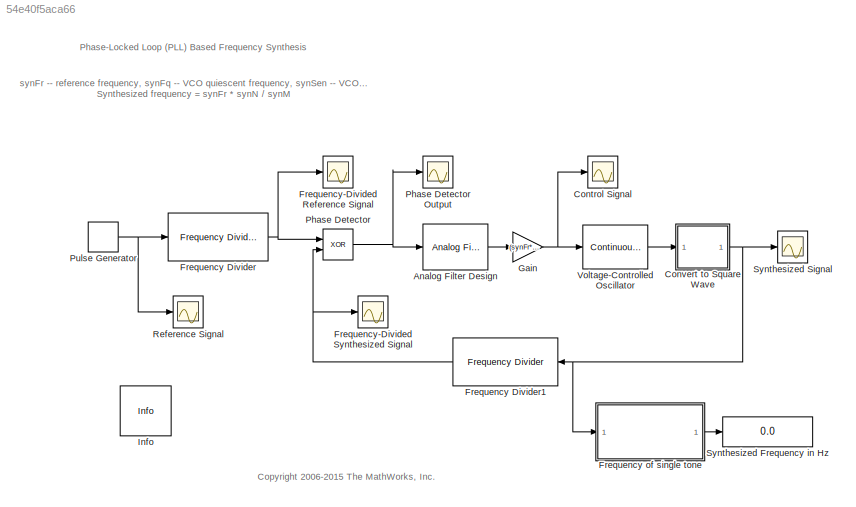
MODEL slx_54e40f5aca66
KIND model
CONFIG AbsTol = auto
CONFIG EnableMultiTasking = on
CONFIG FixedStep = 1/(3*synFr*synN/synM)
CONFIG MaxStep = .5/(synFr*synN/synM)
CONFIG MinStep = auto
CONFIG PreLoadFcn = synM = 3;    % frequency division ratio\nsynN = 10;   % frequency division ratio\nsynFr = 30e6;   % reference frequency\nsynFq = synFr;       % quiescent frequency\nsynSen = 40e6;   % VCO sensitivity
CONFIG RelTol = 1e-3
CONFIG SampleTimeConstraint = Unconstrained
CONFIG Solver = ode45
CONFIG SolverName = ode45
CONFIG StartTime = 0.0
CONFIG StopTime = 500*synM/synFr
BLOCK [Reference] Analog Filter Design  REF=dsparch4/Analog
Filter Design
  Ports = [1, 1]
  SourceBlock = dsparch4/Analog\nFilter Design
  SourceProductBaseCode = DS
  SourceProductName = DSP System Toolbox
  SourceType = Analog Filter Design
BLOCK [Scope] Control Signal
  Floating = off
  NumInputPorts = 1
  Ports = [1]
  ScopeSpecificationString = Simulink.scopes.TimeScopeBlockCfg('CurrentConfiguration', extmgr.ConfigurationSet(extmgr.Configuration('Core','General UI',true,'FigureColor',[1 1 1]),extmgr.Configuration('Core','Source UI',true),extmgr.Configuration('Sources','WiredSimulink',true,'DataLoggingVariableName','ScopeData1','DataLoggingSaveFormat','StructureWithTime','DataLoggingDecimation','1','DataLoggingDecimateData',true),extmgr.C...<+1836ch>
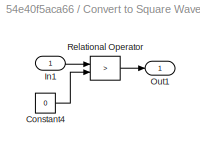
BLOCK [SubSystem] Convert to Square Wave
  Ports = [1, 1]
  RequestExecContextInheritance = off
BLOCK [Constant] Convert to Square Wave/Constant4
  Value = 0
BLOCK [Inport] Convert to Square Wave/In1
  IconDisplay = Port number
BLOCK [Outport] Convert to Square Wave/Out1
  IconDisplay = Port number
BLOCK [RelationalOperator] Convert to Square Wave/Relational Operator
  Operator = >
  Ports = [2, 1]
BLOCK [Reference] Frequency Divider  REF=commblksprivate/Frequency Divider
  Ports = [1, 1]
  SourceBlock = commblksprivate/Frequency Divider
  SourceProductBaseCode = CM
  SourceProductName = Communications System Toolbox
  SourceType = Frequency Divider
BLOCK [Reference] Frequency Divider1  REF=commblksprivate/Frequency Divider
  Ports = [1, 1]
  SourceBlock = commblksprivate/Frequency Divider
  SourceProductBaseCode = CM
  SourceProductName = Communications System Toolbox
  SourceType = Frequency Divider
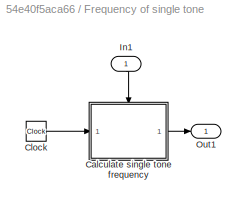
BLOCK [SubSystem] Frequency of single tone
  Ports = [1, 1]
  RequestExecContextInheritance = off
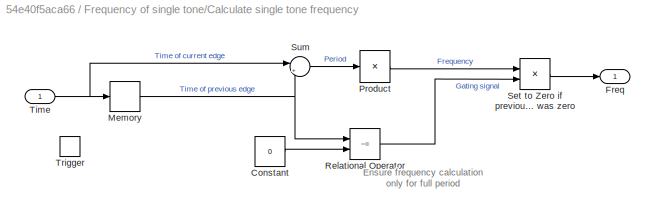
BLOCK [SubSystem] Frequency of single tone/Calculate single tone frequency
  Ports = [1, 1, 0, 1]
  RequestExecContextInheritance = off
  TreatAsAtomicUnit = on
BLOCK [Constant] Frequency of single tone/Calculate single tone frequency/Constant
  Value = 0
BLOCK [Outport] Frequency of single tone/Calculate single tone frequency/Freq
  IconDisplay = Port number
  InitialOutput = 0
BLOCK [Memory] Frequency of single tone/Calculate single tone frequency/Memory
  InheritSampleTime = on
BLOCK [Product] Frequency of single tone/Calculate single tone frequency/Product
  Inputs = /
  Ports = [1, 1]
  RndMeth = Floor
BLOCK [RelationalOperator] Frequency of single tone/Calculate single tone frequency/Relational Operator
  Operator = ~=
  Ports = [2, 1]
BLOCK [Product] Frequency of single tone/Calculate single tone frequency/Set to Zero if previous time was zero
  Ports = [2, 1]
  RndMeth = Floor
BLOCK [Sum] Frequency of single tone/Calculate single tone frequency/Sum
  IconShape = round
  Inputs = |+-
  Ports = [2, 1]
BLOCK [Inport] Frequency of single tone/Calculate single tone frequency/Time
  IconDisplay = Port number
BLOCK [TriggerPort] Frequency of single tone/Calculate single tone frequency/Trigger
  Ports = []
  VariantControl = (inherit)
  ZeroCross = off
BLOCK [Clock] Frequency of single tone/Clock
  Decimation = 1
BLOCK [Inport] Frequency of single tone/In1
  IconDisplay = Port number
BLOCK [Outport] Frequency of single tone/Out1
  IconDisplay = Port number
BLOCK [Scope] Frequency-Divided Reference Signal
  Floating = off
  NumInputPorts = 1
  Ports = [1]
  ScopeSpecificationString = Simulink.scopes.TimeScopeBlockCfg('CurrentConfiguration', extmgr.ConfigurationSet(extmgr.Configuration('Core','General UI',true,'FigureColor',[1 1 1]),extmgr.Configuration('Core','Source UI',true),extmgr.Configuration('Sources','WiredSimulink',true,'DataLoggingVariableName','ScopeData5','DataLoggingSaveFormat','StructureWithTime','DataLoggingLimitDataPoints',true,'DataLoggingDecimation','1','DataL...<+1912ch>
BLOCK [Scope] Frequency-Divided Synthesized Signal
  Floating = off
  NumInputPorts = 1
  Ports = [1]
  ScopeSpecificationString = Simulink.scopes.TimeScopeBlockCfg('CurrentConfiguration', extmgr.ConfigurationSet(extmgr.Configuration('Core','General UI',true,'FigureColor',[1 1 1]),extmgr.Configuration('Core','Source UI',true),extmgr.Configuration('Sources','WiredSimulink',true,'DataLoggingVariableName','ScopeData4','DataLoggingSaveFormat','StructureWithTime','DataLoggingLimitDataPoints',true,'DataLoggingDecimation','1','DataL...<+1912ch>
BLOCK [Gain] Gain
  Gain = (synFr*synN/synM - synFq) * 2 / synSen
BLOCK [Reference] Info  REF=commblksprivate/Info
  Ports = []
  SourceBlock = commblksprivate/Info
  SourceProductBaseCode = CM
  SourceProductName = Communications System Toolbox
  SourceType = Info
BLOCK [Logic] Phase Detector
  Operator = XOR
  Ports = [2, 1]
BLOCK [Scope] Phase Detector Output
  Floating = off
  NumInputPorts = 1
  Ports = [1]
  ScopeSpecificationString = Simulink.scopes.TimeScopeBlockCfg('CurrentConfiguration', extmgr.ConfigurationSet(extmgr.Configuration('Core','General UI',true,'FigureColor',[1 1 1]),extmgr.Configuration('Core','Source UI',true),extmgr.Configuration('Sources','WiredSimulink',true,'DataLoggingVariableName','ScopeData6','DataLoggingSaveFormat','StructureWithTime','DataLoggingLimitDataPoints',true,'DataLoggingDecimation','1','DataL...<+1908ch>
BLOCK [DiscretePulseGenerator] Pulse Generator
  Period = 1/synFr
  Ports = [0, 1]
  PulseType = Time based
  PulseWidth = 50
BLOCK [Scope] Reference Signal
  Floating = off
  NumInputPorts = 1
  Ports = [1]
  ScopeSpecificationString = Simulink.scopes.TimeScopeBlockCfg('CurrentConfiguration', extmgr.ConfigurationSet(extmgr.Configuration('Core','General UI',true,'FigureColor',[1 1 1]),extmgr.Configuration('Core','Source UI',true),extmgr.Configuration('Sources','WiredSimulink',true,'DataLoggingSaveFormat','StructureWithTime','DataLoggingLimitDataPoints',true,'DataLoggingDecimation','1','DataLoggingDecimateData',true),extmgr.Config...<+1870ch>
BLOCK [Display] Synthesized Frequency in Hz
  Decimation = 1
  Ports = [1]
BLOCK [Scope] Synthesized Signal
  Floating = off
  NumInputPorts = 1
  Ports = [1]
  ScopeSpecificationString = Simulink.scopes.TimeScopeBlockCfg('CurrentConfiguration', extmgr.ConfigurationSet(extmgr.Configuration('Core','General UI',true,'FigureColor',[1 1 1]),extmgr.Configuration('Core','Source UI',true),extmgr.Configuration('Sources','WiredSimulink',true,'DataLoggingVariableName','ScopeData2','DataLoggingSaveFormat','StructureWithTime','DataLoggingMaxPoints','50000','DataLoggingLimitDataPoints',true,'Da...<+1947ch>
BLOCK [Reference] Voltage-Controlled Oscillator  REF=commsynccomp2/Continuous-Time
VCO
  Ports = [1, 1]
  SourceBlock = commsynccomp2/Continuous-Time\nVCO
  SourceProductBaseCode = CM
  SourceProductName = Communications System Toolbox
  SourceType = Continuous-Time VCO
ANNOTATION (root): <copyright redacted>
ANNOTATION (root): Phase-Locked Loop (PLL) Based Frequency Synthesis
ANNOTATION (root): synFr -- reference frequency, synFq -- VCO quiescent frequency, synSen -- VCO sensitivity Synthesized frequency = synFr * synN / synM
ANNOTATION Frequency of single tone/Calculate single tone frequency: Ensure frequency calculation only for full period
LINE Analog Filter Design:1 -> Gain:1
LINE Convert to Square Wave/Constant4:1 -> Convert to Square Wave/Relational Operator:2
LINE Convert to Square Wave/In1:1 -> Convert to Square Wave/Relational Operator:1
LINE Convert to Square Wave/Relational Operator:1 -> Convert to Square Wave/Out1:1
NET Convert to Square Wave:1 -> Frequency Divider1:1, Frequency of single tone:1, Synthesized Signal:1
NET Frequency Divider1:1 -> Frequency-Divided Synthesized Signal:1, Phase Detector:2
NET Frequency Divider:1 -> Frequency-Divided Reference Signal:1, Phase Detector:1
LINE Frequency of single tone/Calculate single tone frequency/Constant:1 -> Frequency of single tone/Calculate single tone frequency/Relational Operator:2
NET Frequency of single tone/Calculate single tone frequency/Memory:1 -> Frequency of single tone/Calculate single tone frequency/Relational Operator:1, Frequency of single tone/Calculate single tone frequency/Sum:2
LINE Frequency of single tone/Calculate single tone frequency/Product:1 -> Frequency of single tone/Calculate single tone frequency/Set to Zero if previous time was zero:1
LINE Frequency of single tone/Calculate single tone frequency/Relational Operator:1 -> Frequency of single tone/Calculate single tone frequency/Set to Zero if previous time was zero:2
LINE Frequency of single tone/Calculate single tone frequency/Set to Zero if previous time was zero:1 -> Frequency of single tone/Calculate single tone frequency/Freq:1
LINE Frequency of single tone/Calculate single tone frequency/Sum:1 -> Frequency of single tone/Calculate single tone frequency/Product:1
NET Frequency of single tone/Calculate single tone frequency/Time:1 -> Frequency of single tone/Calculate single tone frequency/Memory:1, Frequency of single tone/Calculate single tone frequency/Sum:1
LINE Frequency of single tone/Calculate single tone frequency:1 -> Frequency of single tone/Out1:1
LINE Frequency of single tone/Clock:1 -> Frequency of single tone/Calculate single tone frequency:1
LINE Frequency of single tone/In1:1 -> Frequency of single tone/Calculate single tone frequency:trigger
LINE Frequency of single tone:1 -> Synthesized Frequency in Hz:1
NET Gain:1 -> Control Signal:1, Voltage-Controlled Oscillator:1
NET Phase Detector:1 -> Analog Filter Design:1, Phase Detector Output:1
NET Pulse Generator:1 -> Frequency Divider:1, Reference Signal:1
LINE Voltage-Controlled Oscillator:1 -> Convert to Square Wave:1
note: NET lines group one-source signal fan-out (src -> all destinations, sorted); 1:1 wires keep LINE
